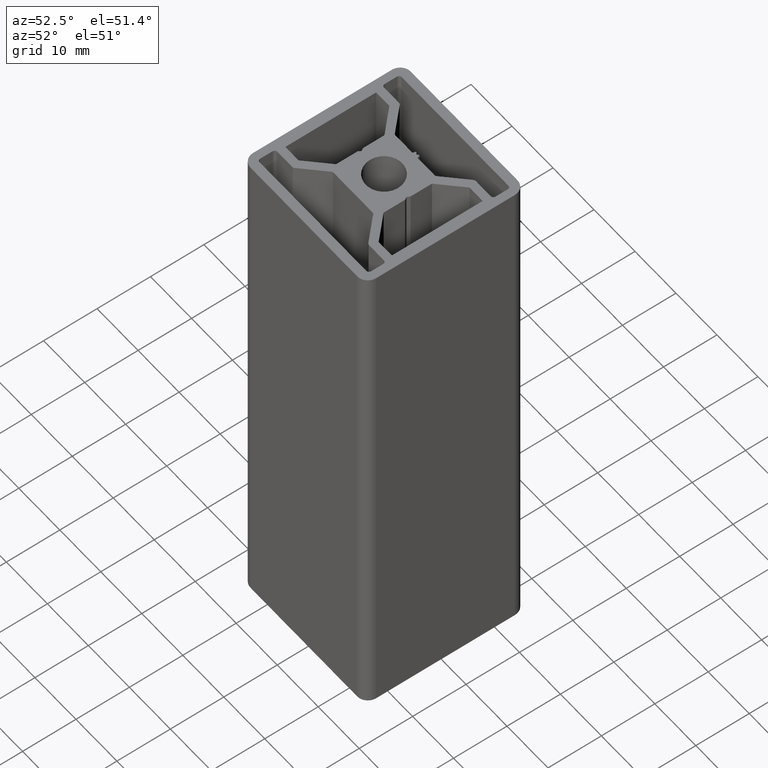
[diagram: clean part render]
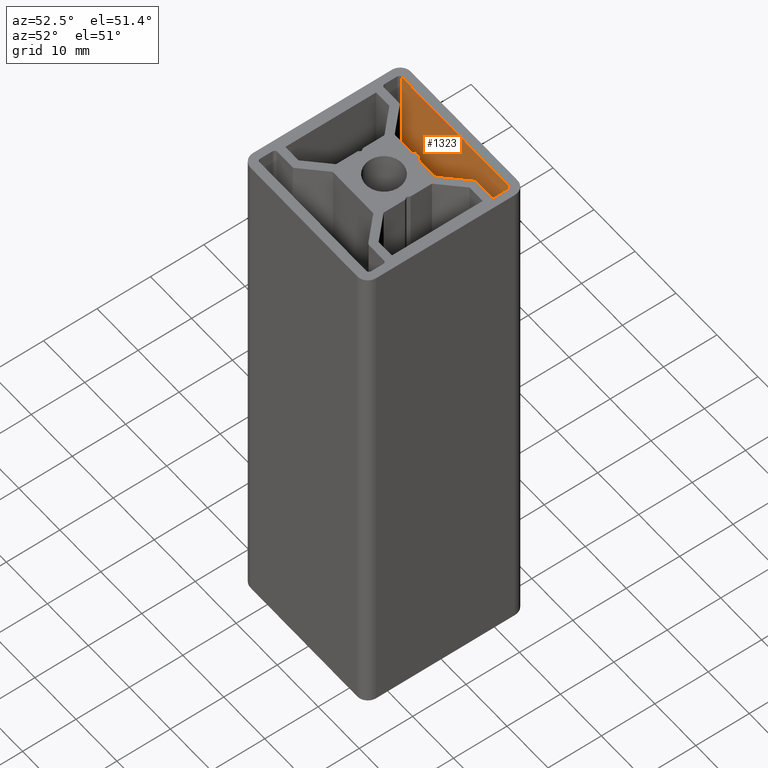
[diagram: same view with one face highlighted and labeled with its STEP entity id]
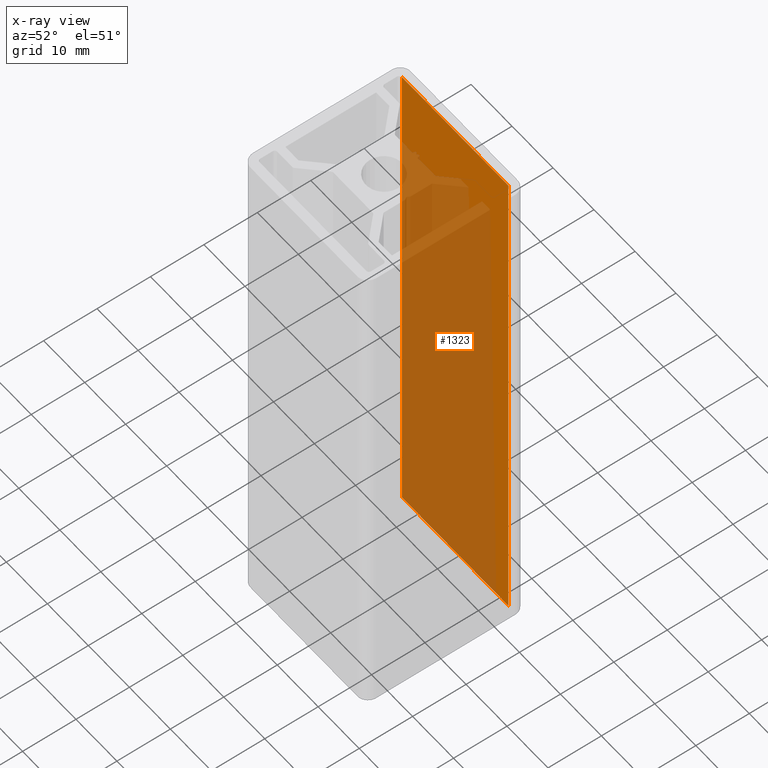
[diagram: x-ray of the same camera — body ghosted, the highlighted face saturated]
A machine part, auxiliary view. The second image highlights one B-rep face of the part: STEP entity #1323.
The next image is the same camera in x-ray: the body ghosted, the highlighted face saturated — about 74% of this face is hidden behind the body in this view.
In plain terms, the highlighted planar face has unit normal (-0, 1, 0).
Its self-contained STEP definition (entity closure, byte-faithful):
#106=FACE_OUTER_BOUND('',#174,.T.);
#174=EDGE_LOOP('',(#917,#918,#919,#920));
#265=LINE('',#1946,#416);
#266=LINE('',#1949,#417);
#267=LINE('',#1951,#418);
#268=LINE('',#1952,#419);
#416=VECTOR('',#1563,100.);
#417=VECTOR('',#1566,25.999999996922);
#418=VECTOR('',#1567,25.999999996922);
#419=VECTOR('',#1568,100.);
#566=VERTEX_POINT('',#1942);
#567=VERTEX_POINT('',#1944);
#568=VERTEX_POINT('',#1948);
#569=VERTEX_POINT('',#1950);
#709=EDGE_CURVE('',#566,#567,#265,.T.);
#710=EDGE_CURVE('',#566,#568,#266,.T.);
#711=EDGE_CURVE('',#569,#567,#267,.T.);
#712=EDGE_CURVE('',#569,#568,#268,.T.);
#917=ORIENTED_EDGE('',*,*,#710,.F.);
#918=ORIENTED_EDGE('',*,*,#709,.T.);
#919=ORIENTED_EDGE('',*,*,#711,.F.);
#920=ORIENTED_EDGE('',*,*,#712,.T.);
#1273=PLANE('',#1403);
#1323=ADVANCED_FACE('',(#106),#1273,.F.);
#1403=AXIS2_PLACEMENT_3D('',#1947,#1564,#1565);
#1563=DIRECTION('',(0.,0.,-1.));
#1564=DIRECTION('center_axis',(-8.54017711351224E-17,1.,0.));
#1565=DIRECTION('ref_axis',(-1.,0.,0.));
#1566=DIRECTION('',(1.,8.54017711351224E-17,0.));
#1567=DIRECTION('',(-1.,-8.54017711351224E-17,0.));
#1568=DIRECTION('',(0.,0.,1.));
#1942=CARTESIAN_POINT('',(-13.0000000040497,13.2999999936992,100.));
#1944=CARTESIAN_POINT('',(-13.0000000040497,13.2999999936992,0.));
#1946=CARTESIAN_POINT('',(-13.0000000040497,13.2999999936992,0.));
#1947=CARTESIAN_POINT('Origin',(12.9999999928723,13.2999999936992,0.));
#1948=CARTESIAN_POINT('',(12.9999999928723,13.2999999936992,100.));
#1949=CARTESIAN_POINT('',(6.49999999643614,13.2999999936992,100.));
#1950=CARTESIAN_POINT('',(12.9999999928723,13.2999999936992,0.));
#1951=CARTESIAN_POINT('',(6.49999999643614,13.2999999936992,0.));
#1952=CARTESIAN_POINT('',(12.9999999928723,13.2999999936992,0.));